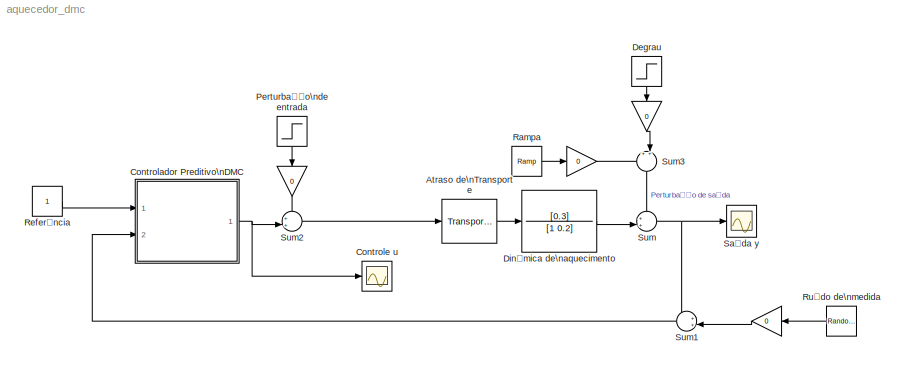
MODEL aquecedor_dmc
KIND model
BLOCK [Gain]  
  Gain = 0
  OutDataTypeStr = Inherit: Inherit via internal rule
  ParamDataTypeStr = Inherit: Inherit via internal rule
  SID = 23
  SaturateOnIntegerOverflow = off
BLOCK [Gain]   
  Gain = 0
  OutDataTypeStr = Inherit: Inherit via internal rule
  ParamDataTypeStr = Inherit: Inherit via internal rule
  SID = 27
  SaturateOnIntegerOverflow = off
BLOCK [Gain]    
  Gain = 0
  OutDataTypeStr = Inherit: Inherit via internal rule
  ParamDataTypeStr = Inherit: Inherit via internal rule
  SID = 24
  SaturateOnIntegerOverflow = off
BLOCK [Gain]     
  Gain = 0
  OutDataTypeStr = Inherit: Inherit via internal rule
  ParamDataTypeStr = Inherit: Inherit via internal rule
  SID = 20
  SaturateOnIntegerOverflow = off
BLOCK [Scope]  Saída y
  Floating = off
  LimitDataPoints = off
  NumInputPorts = 1
  Ports = [1]
  SID = 1
  SaveName = y
  ShowLegends = off
  TimeRange = 60
  YMax = 1.4
  YMin = 0
  ZoomMode = yonly
BLOCK [TransportDelay] Atraso de\nTransporte
  DelayTime = 2
  Ports = [1, 1]
  SID = 2
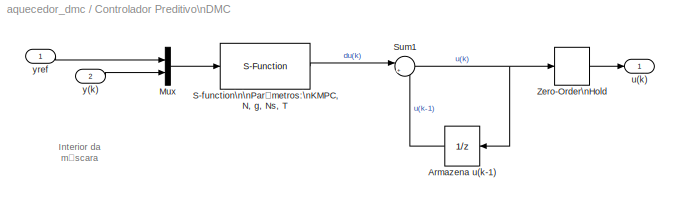
BLOCK [SubSystem] Controlador Preditivo\nDMC
  FunctionWithSeparateData = off
  MaskCallbackString = ||||
  MaskEnableString = on,on,on,on,on
  MaskHideContents = off
  MaskIconFrame = on
  MaskIconOpaque = on
  MaskIconRotate = none
  MaskIconUnits = autoscale
  MaskInitialization = Ns = length(g);\ngaux = g;\nif N > Ns\n    gaux(Ns+1:N) = g(Ns);\nend\ncol = gaux(1:N);\nrow = [gaux(1) zeros(1,N-1)];\nG = toeplitz(col,row);\nG = G(:,1:M);\nGAIN = inv(G'*G + rho*eye(M))*G';\nKMPC = GAIN(1,:);\n
  MaskPortRotate = default
  MaskPromptString = Peso do controle (rho)|Horizonte de Predição (N)|Horizonte de Controle (M)|Resposta a degrau da planta (g)|Período de amostragem (T)
  MaskStyleString = edit,edit,edit,edit,edit
  MaskToolTipString = on,on,on,on,on
  MaskTunableValueString = on,on,on,on,on
  MaskValueString = 9.1|28|8|g|T
  MaskVariables = rho=@1;N=@2;M=@3;g=@4;T=@5;
  MaskVisibilityString = on,on,on,on,on
  MinAlgLoopOccurrences = off
  Opaque = off
  Ports = [2, 1]
  PropExecContextOutsideSubsystem = off
  RTWSystemCode = Auto
  RequestExecContextInheritance = off
  SID = 3
BLOCK [UnitDelay] Controlador Preditivo\nDMC/Armazena u(k-1)
  SID = 6
  SampleTime = T
BLOCK [Mux] Controlador Preditivo\nDMC/Mux
  DisplayOption = bar
  Inputs = 2
  Ports = [2, 1]
  SID = 8
BLOCK [S-Function] Controlador Preditivo\nDMC/S-function\n\nParâmetros:\nKMPC, N, g, Ns, T
  EnableBusSupport = off
  FunctionName = dmc
  Parameters = KMPC,N,g,Ns,T
  Ports = [1, 1]
  SID = 7
BLOCK [Sum] Controlador Preditivo\nDMC/Sum1
  IconShape = round
  Inputs = |++
  Ports = [2, 1]
  SID = 9
BLOCK [ZeroOrderHold] Controlador Preditivo\nDMC/Zero-Order\nHold
  SID = 10
  SampleTime = T
BLOCK [Outport] Controlador Preditivo\nDMC/u(k)
  IconDisplay = Port number
  SID = 11
BLOCK [Inport] Controlador Preditivo\nDMC/y(k)
  IconDisplay = Port number
  Port = 2
  SID = 5
BLOCK [Inport] Controlador Preditivo\nDMC/yref
  IconDisplay = Port number
  SID = 4
BLOCK [Scope] Controle u
  Floating = off
  LimitDataPoints = off
  NumInputPorts = 1
  Ports = [1]
  SID = 12
  SaveName = u
  ShowLegends = off
  TimeRange = 60
  YMax = 0.9000000000000001
  YMin = 0.2
  ZoomMode = yonly
BLOCK [Step] Degrau
  After = -0.75
  SID = 15
  SampleTime = 0
  Time = 30
BLOCK [TransferFcn] Dinâmica de\naquecimento
  Denominator = [1 0.2]
  Numerator = [0.3]
  SID = 13
BLOCK [Step] Perturbação\nde entrada
  After = -0.5
  SID = 22
  SampleTime = 0
  Time = 30
BLOCK [Reference] Rampa  REF=simulink/Sources/Ramp
  Ports = [0, 1]
  SID = 17
  SourceBlock = simulink/Sources/Ramp
  SourceType = Ramp
  VectorParams1D = on
  X0 = 0
  slope = -0.1
  start = 30
BLOCK [Constant] Referência
  SID = 14
BLOCK [RandomNumber] Ruído de\nmedida
  SID = 18
  SampleTime = T
  Variance = 0.01
BLOCK [Sum] Sum
  IconShape = round
  Inputs = ++|
  Ports = [2, 1]
  SID = 16
BLOCK [Sum] Sum1
  IconShape = round
  Inputs = ++|
  Ports = [2, 1]
  SID = 19
BLOCK [Sum] Sum2
  IconShape = round
  Inputs = ++|
  Ports = [2, 1]
  SID = 21
BLOCK [Sum] Sum3
  IconShape = round
  Inputs = ++|
  Ports = [2, 1]
  SID = 28
ANNOTATION Controlador Preditivo\nDMC: Interior da\nmáscara
LINE     :1 -> Sum1:2
LINE    :1 -> Sum3:2
LINE   :1 -> Sum3:1
LINE  :1 -> Sum2:1
LINE Atraso de\nTransporte:1 -> Dinâmica de\naquecimento:1
LINE Controlador Preditivo\nDMC/Armazena u(k-1):1 -> Controlador Preditivo\nDMC/Sum1:2
LINE Controlador Preditivo\nDMC/Mux:1 -> Controlador Preditivo\nDMC/S-function\n\nParâmetros:\nKMPC, N, g, Ns, T:1
LINE Controlador Preditivo\nDMC/S-function\n\nParâmetros:\nKMPC, N, g, Ns, T:1 -> Controlador Preditivo\nDMC/Sum1:1
NET Controlador Preditivo\nDMC/Sum1:1 -> Controlador Preditivo\nDMC/Armazena u(k-1):1, Controlador Preditivo\nDMC/Zero-Order\nHold:1
LINE Controlador Preditivo\nDMC/Zero-Order\nHold:1 -> Controlador Preditivo\nDMC/u(k):1
LINE Controlador Preditivo\nDMC/y(k):1 -> Controlador Preditivo\nDMC/Mux:2
LINE Controlador Preditivo\nDMC/yref:1 -> Controlador Preditivo\nDMC/Mux:1
NET Controlador Preditivo\nDMC:1 -> Controle u:1, Sum2:2
LINE Degrau:1 ->    :1
LINE Dinâmica de\naquecimento:1 -> Sum:2
LINE Perturbação\nde entrada:1 ->  :1
LINE Rampa:1 ->   :1
LINE Referência:1 -> Controlador Preditivo\nDMC:1
LINE Ruído de\nmedida:1 ->     :1
LINE Sum1:1 -> Controlador Preditivo\nDMC:2
LINE Sum2:1 -> Atraso de\nTransporte:1
LINE Sum3:1 -> Sum:1
NET Sum:1 ->  Saída y:1, Sum1:1
note: NET lines group one-source signal fan-out (src -> all destinations, sorted); 1:1 wires keep LINE
